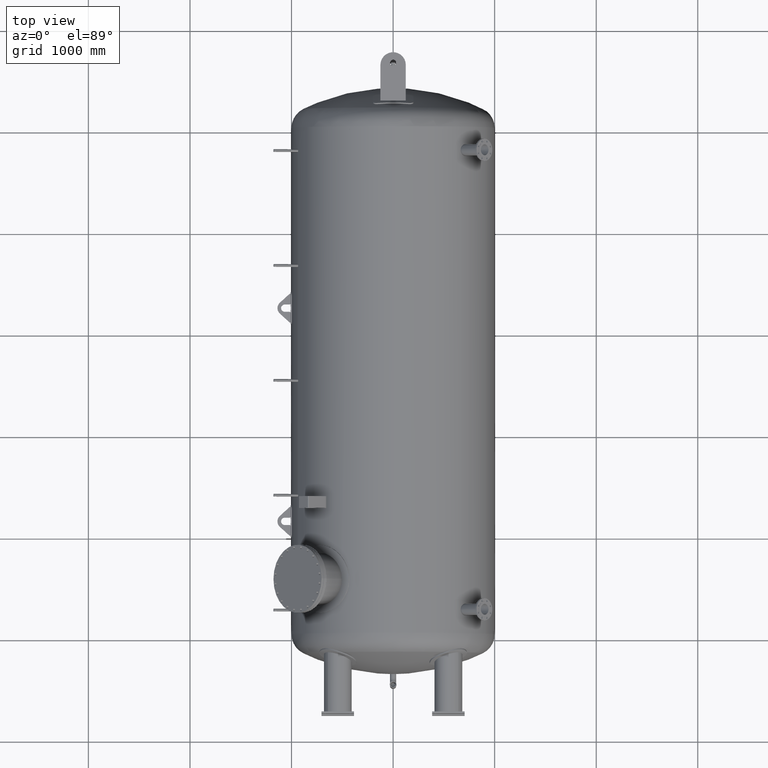
[diagram: clean part render]
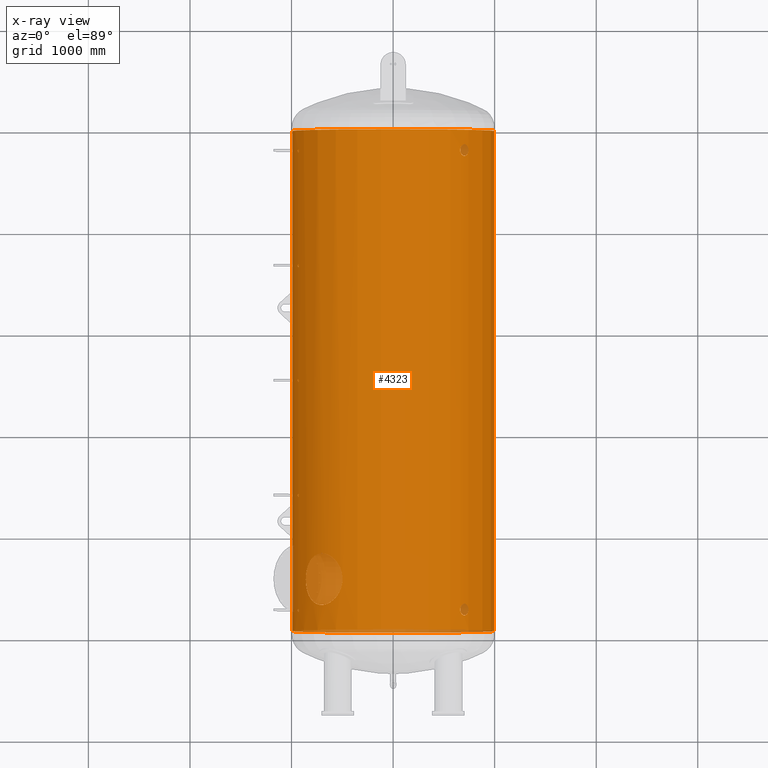
[diagram: x-ray — body ghosted, one internal face saturated and labeled with its STEP entity id]
A machine part, top view, then the same camera in x-ray: the body is ghosted and one INTERNAL B-rep face — a face not visible from any outside direction — is saturated and labeled: STEP entity #4323.
In plain terms, the highlighted cylindrical surface (bore or boss wall) has radius 993 mm, axis along (0, 1, 0).
Its self-contained STEP definition (entity closure, byte-faithful):
#169=B_SPLINE_CURVE_WITH_KNOTS('',3,(#7007,#7008,#7009,#7010,#7011,#7012,
#7013,#7014,#7015,#7016,#7017,#7018,#7019,#7020,#7021,#7022,#7023,#7024,
#7025,#7026,#7027,#7028,#7029,#7030,#7031,#7032),.UNSPECIFIED.,.F.,.F.,
(4,2,2,2,2,2,2,2,2,2,2,2,4),(0.,0.506650251299068,1.01330050259814,1.51995075332208,
2.02660100404602,2.53325125476996,3.03990150549391,3.54655175679297,4.05320200809204,
4.5598522593911,5.06650251069017,5.57315276141411,6.07980301213806),
 .UNSPECIFIED.);
#170=B_SPLINE_CURVE_WITH_KNOTS('',3,(#7033,#7034,#7035,#7036,#7037,#7038,
#7039,#7040,#7041,#7042),.UNSPECIFIED.,.F.,.F.,(4,2,2,2,4),(6.07980301213806,
6.586453262862,7.09310351358594,7.59975376488501,8.10640401618408),
 .UNSPECIFIED.);
#173=B_SPLINE_CURVE_WITH_KNOTS('',3,(#7086,#7087,#7088,#7089,#7090,#7091,
#7092,#7093,#7094,#7095,#7096,#7097,#7098,#7099,#7100,#7101,#7102,#7103,
#7104,#7105,#7106,#7107,#7108,#7109,#7110,#7111),.UNSPECIFIED.,.F.,.F.,
(4,2,2,2,2,2,2,2,2,2,2,2,4),(0.,0.506650251299068,1.01330050259814,1.51995075332207,
2.02660100404601,2.53325125476995,3.03990150549389,3.54655175679296,4.05320200809202,
4.55985225939108,5.06650251069015,5.57315276141409,6.07980301213803),
 .UNSPECIFIED.);
#174=B_SPLINE_CURVE_WITH_KNOTS('',3,(#7112,#7113,#7114,#7115,#7116,#7117,
#7118,#7119,#7120,#7121),.UNSPECIFIED.,.F.,.F.,(4,2,2,2,4),(6.07980301213803,
6.58645326286197,7.0931035135859,7.59975376488497,8.10640401618404),
 .UNSPECIFIED.);
#177=B_SPLINE_CURVE_WITH_KNOTS('',3,(#7165,#7166,#7167,#7168,#7169,#7170,
#7171,#7172,#7173,#7174,#7175,#7176,#7177,#7178,#7179,#7180,#7181,#7182,
#7183,#7184,#7185,#7186,#7187,#7188,#7189,#7190),.UNSPECIFIED.,.F.,.F.,
(4,2,2,2,2,2,2,2,2,2,2,2,4),(0.,0.506650251299068,1.01330050259814,1.51995075332207,
2.02660100404601,2.53325125476995,3.03990150549389,3.54655175679296,4.05320200809202,
4.55985225939108,5.06650251069015,5.57315276141409,6.07980301213803),
 .UNSPECIFIED.);
#178=B_SPLINE_CURVE_WITH_KNOTS('',3,(#7191,#7192,#7193,#7194,#7195,#7196,
#7197,#7198,#7199,#7200),.UNSPECIFIED.,.F.,.F.,(4,2,2,2,4),(6.07980301213803,
6.58645326286197,7.0931035135859,7.59975376488497,8.10640401618404),
 .UNSPECIFIED.);
#181=B_SPLINE_CURVE_WITH_KNOTS('',3,(#7244,#7245,#7246,#7247,#7248,#7249,
#7250,#7251,#7252,#7253,#7254,#7255,#7256,#7257,#7258,#7259,#7260,#7261,
#7262,#7263,#7264,#7265,#7266,#7267,#7268,#7269),.UNSPECIFIED.,.F.,.F.,
(4,2,2,2,2,2,2,2,2,2,2,2,4),(0.,0.506650251299068,1.01330050259814,1.51995075332208,
2.02660100404602,2.53325125476996,3.03990150549391,3.54655175679297,4.05320200809204,
4.5598522593911,5.06650251069017,5.57315276141411,6.07980301213806),
 .UNSPECIFIED.);
#182=B_SPLINE_CURVE_WITH_KNOTS('',3,(#7270,#7271,#7272,#7273,#7274,#7275,
#7276,#7277,#7278,#7279),.UNSPECIFIED.,.F.,.F.,(4,2,2,2,4),(6.07980301213806,
6.586453262862,7.09310351358594,7.59975376488501,8.10640401618408),
 .UNSPECIFIED.);
#185=B_SPLINE_CURVE_WITH_KNOTS('',3,(#7323,#7324,#7325,#7326,#7327,#7328,
#7329,#7330,#7331,#7332,#7333,#7334,#7335,#7336,#7337,#7338,#7339,#7340,
#7341,#7342,#7343,#7344,#7345,#7346,#7347,#7348),.UNSPECIFIED.,.F.,.F.,
(4,2,2,2,2,2,2,2,2,2,2,2,4),(0.,0.506650251299054,1.01330050259811,1.51995075332205,
2.02660100404599,2.53325125476994,3.03990150549389,3.54655175679294,4.05320200809199,
4.55985225939104,5.06650251069009,5.57315276141404,6.07980301213799),
 .UNSPECIFIED.);
#186=B_SPLINE_CURVE_WITH_KNOTS('',3,(#7349,#7350,#7351,#7352,#7353,#7354,
#7355,#7356,#7357,#7358),.UNSPECIFIED.,.F.,.F.,(4,2,2,2,4),(6.07980301213799,
6.58645326286193,7.09310351358587,7.59975376488493,8.10640401618398),
 .UNSPECIFIED.);
#189=B_SPLINE_CURVE_WITH_KNOTS('',3,(#7418,#7419,#7420,#7421,#7422,#7423,
#7424,#7425,#7426,#7427,#7428,#7429,#7430,#7431,#7432,#7433,#7434,#7435,
#7436,#7437,#7438,#7439,#7440,#7441,#7442,#7443,#7444,#7445,#7446,#7447,
#7448,#7449,#7450,#7451,#7452,#7453,#7454,#7455,#7456,#7457,#7458,#7459,
#7460,#7461,#7462,#7463,#7464,#7465,#7466,#7467),.UNSPECIFIED.,.F.,.F.,
(4,2,2,2,2,2,2,2,2,2,2,2,2,2,2,2,2,2,2,2,2,2,2,2,4),(0.,1.07663762456727,
2.15327524913453,3.2299128737018,4.30655049826906,5.38318772328418,6.45982494829929,
7.5364621733144,8.61309939832951,9.68973662334463,10.7663738483597,11.8430110733749,
12.91964829839,13.9962859229572,15.0729235475245,16.1495611720918,17.226198796659,
18.3028364212263,19.3794740457935,20.4561116703607,21.532749294928,22.6093865199431,
23.6860237449582,24.7626609699734,25.8392981949885),.UNSPECIFIED.);
#190=B_SPLINE_CURVE_WITH_KNOTS('',3,(#7468,#7469,#7470,#7471,#7472,#7473,
#7474,#7475,#7476,#7477,#7478,#7479,#7480,#7481,#7482,#7483,#7484,#7485),
 .UNSPECIFIED.,.F.,.F.,(4,2,2,2,2,2,2,2,4),(25.8392981949885,26.9159354200036,
27.9925726450187,29.0692098700339,30.145847095049,31.2224847196162,32.2991223441835,
33.3757599687507,34.4523975933179),.UNSPECIFIED.);
#193=B_SPLINE_CURVE_WITH_KNOTS('',3,(#7561,#7562,#7563,#7564,#7565,#7566,
#7567,#7568,#7569,#7570,#7571,#7572,#7573,#7574,#7575,#7576,#7577,#7578,
#7579,#7580,#7581,#7582,#7583,#7584,#7585,#7586,#7587,#7588,#7589,#7590,
#7591,#7592,#7593,#7594,#7595,#7596,#7597,#7598,#7599,#7600,#7601,#7602,
#7603,#7604,#7605,#7606,#7607,#7608,#7609,#7610),.UNSPECIFIED.,.F.,.F.,
(4,2,2,2,2,2,2,2,2,2,2,2,2,2,2,2,2,2,2,2,2,2,2,2,4),(0.,1.07663762456725,
2.1532752491345,3.22991287370176,4.30655049826901,5.38318772328413,6.45982494829925,
7.53646217331437,8.61309939832949,9.68973662334462,10.7663738483597,11.8430110733749,
12.91964829839,13.9962859229572,15.0729235475245,16.1495611720917,17.226198796659,
18.3028364212262,19.3794740457935,20.4561116703608,21.532749294928,22.6093865199431,
23.6860237449583,24.7626609699734,25.8392981949885),.UNSPECIFIED.);
#194=B_SPLINE_CURVE_WITH_KNOTS('',3,(#7611,#7612,#7613,#7614,#7615,#7616,
#7617,#7618,#7619,#7620,#7621,#7622,#7623,#7624,#7625,#7626,#7627,#7628),
 .UNSPECIFIED.,.F.,.F.,(4,2,2,2,2,2,2,2,4),(25.8392981949885,26.9159354200036,
27.9925726450187,29.0692098700339,30.145847095049,31.2224847196162,32.2991223441835,
33.3757599687508,34.452397593318),.UNSPECIFIED.);
#197=B_SPLINE_CURVE_WITH_KNOTS('',3,(#7704,#7705,#7706,#7707,#7708,#7709,
#7710,#7711,#7712,#7713,#7714,#7715,#7716,#7717,#7718,#7719,#7720,#7721,
#7722,#7723,#7724,#7725,#7726,#7727,#7728,#7729,#7730,#7731,#7732,#7733,
#7734,#7735,#7736,#7737,#7738,#7739,#7740,#7741,#7742,#7743,#7744,#7745,
#7746,#7747,#7748,#7749,#7750,#7751,#7752,#7753),.UNSPECIFIED.,.F.,.F.,
(4,2,2,2,2,2,2,2,2,2,2,2,2,2,2,2,2,2,2,2,2,2,2,2,4),(0.,1.07663762456727,
2.15327524913453,3.2299128737018,4.30655049826906,5.38318772328418,6.45982494829929,
7.5364621733144,8.61309939832951,9.68973662334463,10.7663738483597,11.8430110733749,
12.91964829839,13.9962859229572,15.0729235475245,16.1495611720918,17.226198796659,
18.3028364212263,19.3794740457935,20.4561116703607,21.532749294928,22.6093865199431,
23.6860237449582,24.7626609699734,25.8392981949885),.UNSPECIFIED.);
#198=B_SPLINE_CURVE_WITH_KNOTS('',3,(#7754,#7755,#7756,#7757,#7758,#7759,
#7760,#7761,#7762,#7763,#7764,#7765,#7766,#7767,#7768,#7769,#7770,#7771),
 .UNSPECIFIED.,.F.,.F.,(4,2,2,2,2,2,2,2,4),(25.8392981949885,26.9159354200036,
27.9925726450187,29.0692098700339,30.145847095049,31.2224847196162,32.2991223441835,
33.3757599687507,34.4523975933179),.UNSPECIFIED.);
#201=B_SPLINE_CURVE_WITH_KNOTS('',3,(#7847,#7848,#7849,#7850,#7851,#7852,
#7853,#7854,#7855,#7856,#7857,#7858,#7859,#7860,#7861,#7862,#7863,#7864,
#7865,#7866,#7867,#7868,#7869,#7870,#7871,#7872,#7873,#7874,#7875,#7876,
#7877,#7878,#7879,#7880,#7881,#7882,#7883,#7884,#7885,#7886,#7887,#7888,
#7889,#7890,#7891,#7892,#7893,#7894,#7895,#7896),.UNSPECIFIED.,.F.,.F.,
(4,2,2,2,2,2,2,2,2,2,2,2,2,2,2,2,2,2,2,2,2,2,2,2,4),(0.,1.07663762456725,
2.1532752491345,3.22991287370176,4.30655049826901,5.38318772328413,6.45982494829925,
7.53646217331437,8.61309939832949,9.68973662334462,10.7663738483597,11.8430110733749,
12.91964829839,13.9962859229572,15.0729235475245,16.1495611720917,17.226198796659,
18.3028364212262,19.3794740457935,20.4561116703608,21.532749294928,22.6093865199431,
23.6860237449583,24.7626609699734,25.8392981949885),.UNSPECIFIED.);
#202=B_SPLINE_CURVE_WITH_KNOTS('',3,(#7897,#7898,#7899,#7900,#7901,#7902,
#7903,#7904,#7905,#7906,#7907,#7908,#7909,#7910,#7911,#7912,#7913,#7914),
 .UNSPECIFIED.,.F.,.F.,(4,2,2,2,2,2,2,2,4),(25.8392981949885,26.9159354200036,
27.9925726450187,29.0692098700339,30.145847095049,31.2224847196162,32.2991223441835,
33.3757599687508,34.452397593318),.UNSPECIFIED.);
#205=B_SPLINE_CURVE_WITH_KNOTS('',3,(#8022,#8023,#8024,#8025,#8026,#8027,
#8028,#8029,#8030,#8031,#8032,#8033,#8034,#8035,#8036,#8037,#8038,#8039,
#8040,#8041,#8042,#8043,#8044,#8045,#8046,#8047,#8048,#8049,#8050,#8051,
#8052,#8053,#8054,#8055,#8056,#8057,#8058,#8059,#8060,#8061,#8062,#8063,
#8064,#8065,#8066,#8067,#8068,#8069,#8070,#8071,#8072,#8073,#8074,#8075,
#8076,#8077,#8078,#8079,#8080,#8081,#8082,#8083,#8084,#8085,#8086,#8087,
#8088,#8089,#8090,#8091,#8092,#8093,#8094,#8095,#8096,#8097,#8098,#8099,
#8100,#8101,#8102,#8103,#8104,#8105,#8106,#8107,#8108,#8109,#8110,#8111,
#8112,#8113,#8114,#8115,#8116,#8117,#8118,#8119),.UNSPECIFIED.,.F.,.F.,
(4,2,2,2,2,2,2,2,2,2,2,2,2,2,2,2,2,2,2,2,2,2,2,2,2,2,2,2,2,2,2,2,2,2,2,
2,2,2,2,2,2,2,2,2,2,2,2,2,4),(0.,2.40369643023023,4.80739286046045,7.21108929069068,
9.61478572092091,12.0184821511511,14.4221785813814,16.8258750116116,19.2295714418418,
21.6328985000873,24.0362255583327,26.4395526165782,28.8428796748237,31.2462067330691,
33.6495337913146,36.0528608495601,38.4561879078055,40.859514966051,43.2628420242965,
45.6661690825419,48.0694961407874,50.4728231990328,52.8761502572783,55.2794773155238,
57.6828043737692,60.0865008039995,62.4901972342297,64.8938936644599,67.2975900946902,
69.7012865249204,72.1049829551506,74.5086793853808,76.9123758156111,79.3160722458413,
81.7197686760715,84.1234651063017,86.527161536532,88.9308579667622,91.3345543969924,
93.7382508272226,96.1419472574529,98.5452743156983,100.948601373944,103.351928432189,
105.755255490435,108.15858254868,110.561909606926,112.965236665171,115.368563723417),
 .UNSPECIFIED.);
#206=B_SPLINE_CURVE_WITH_KNOTS('',3,(#8120,#8121,#8122,#8123,#8124,#8125,
#8126,#8127,#8128,#8129,#8130,#8131,#8132,#8133,#8134,#8135,#8136,#8137,
#8138,#8139,#8140,#8141,#8142,#8143,#8144,#8145,#8146,#8147,#8148,#8149,
#8150,#8151,#8152,#8153),.UNSPECIFIED.,.F.,.F.,(4,2,2,2,2,2,2,2,2,2,2,2,
2,2,2,2,4),(115.368563723417,117.771890781662,120.175217839908,122.578544898153,
124.981871956398,127.385199014644,129.788526072889,132.191853131135,134.59518018938,
136.998876619611,139.402573049841,141.806269480071,144.209965910301,146.613662340531,
149.017358770762,151.421055200992,153.824751631222),.UNSPECIFIED.);
#408=FACE_BOUND('',#849,.T.);
#409=FACE_BOUND('',#850,.T.);
#410=FACE_BOUND('',#851,.T.);
#411=FACE_BOUND('',#852,.T.);
#412=FACE_BOUND('',#853,.T.);
#413=FACE_BOUND('',#854,.T.);
#414=FACE_BOUND('',#855,.T.);
#415=FACE_BOUND('',#856,.T.);
#416=FACE_BOUND('',#857,.T.);
#417=FACE_BOUND('',#858,.T.);
#611=FACE_OUTER_BOUND('',#848,.T.);
#848=EDGE_LOOP('',(#3044,#3045,#3046,#3047,#3048,#3049));
#849=EDGE_LOOP('',(#3050,#3051));
#850=EDGE_LOOP('',(#3052,#3053));
#851=EDGE_LOOP('',(#3054,#3055));
#852=EDGE_LOOP('',(#3056,#3057));
#853=EDGE_LOOP('',(#3058,#3059));
#854=EDGE_LOOP('',(#3060,#3061));
#855=EDGE_LOOP('',(#3062,#3063));
#856=EDGE_LOOP('',(#3064,#3065));
#857=EDGE_LOOP('',(#3066,#3067));
#858=EDGE_LOOP('',(#3068,#3069));
#1246=LINE('',#8226,#1474);
#1474=VECTOR('',#5656,992.999999999999);
#1707=CIRCLE('',#5028,992.999999999999);
#1708=CIRCLE('',#5029,992.999999999998);
#1709=CIRCLE('',#5030,992.999999999998);
#1710=CIRCLE('',#5031,992.999999999999);
#1980=VERTEX_POINT('',#7004);
#1981=VERTEX_POINT('',#7006);
#1984=VERTEX_POINT('',#7083);
#1985=VERTEX_POINT('',#7085);
#1988=VERTEX_POINT('',#7162);
#1989=VERTEX_POINT('',#7164);
#1992=VERTEX_POINT('',#7241);
#1993=VERTEX_POINT('',#7243);
#1996=VERTEX_POINT('',#7320);
#1997=VERTEX_POINT('',#7322);
#2000=VERTEX_POINT('',#7415);
#2001=VERTEX_POINT('',#7417);
#2004=VERTEX_POINT('',#7558);
#2005=VERTEX_POINT('',#7560);
#2008=VERTEX_POINT('',#7701);
#2009=VERTEX_POINT('',#7703);
#2012=VERTEX_POINT('',#7844);
#2013=VERTEX_POINT('',#7846);
#2016=VERTEX_POINT('',#8019);
#2017=VERTEX_POINT('',#8021);
#2018=VERTEX_POINT('',#8222);
#2019=VERTEX_POINT('',#8223);
#2020=VERTEX_POINT('',#8225);
#2021=VERTEX_POINT('',#8227);
#2386=EDGE_CURVE('',#1981,#1980,#169,.T.);
#2387=EDGE_CURVE('',#1980,#1981,#170,.T.);
#2391=EDGE_CURVE('',#1985,#1984,#173,.T.);
#2392=EDGE_CURVE('',#1984,#1985,#174,.T.);
#2396=EDGE_CURVE('',#1989,#1988,#177,.T.);
#2397=EDGE_CURVE('',#1988,#1989,#178,.T.);
#2401=EDGE_CURVE('',#1993,#1992,#181,.T.);
#2402=EDGE_CURVE('',#1992,#1993,#182,.T.);
#2406=EDGE_CURVE('',#1997,#1996,#185,.T.);
#2407=EDGE_CURVE('',#1996,#1997,#186,.T.);
#2411=EDGE_CURVE('',#2001,#2000,#189,.T.);
#2412=EDGE_CURVE('',#2000,#2001,#190,.T.);
#2416=EDGE_CURVE('',#2005,#2004,#193,.T.);
#2417=EDGE_CURVE('',#2004,#2005,#194,.T.);
#2421=EDGE_CURVE('',#2009,#2008,#197,.T.);
#2422=EDGE_CURVE('',#2008,#2009,#198,.T.);
#2426=EDGE_CURVE('',#2013,#2012,#201,.T.);
#2427=EDGE_CURVE('',#2012,#2013,#202,.T.);
#2431=EDGE_CURVE('',#2017,#2016,#205,.T.);
#2432=EDGE_CURVE('',#2016,#2017,#206,.T.);
#2434=EDGE_CURVE('',#2018,#2019,#1707,.T.);
#2435=EDGE_CURVE('',#2019,#2020,#1246,.T.);
#2436=EDGE_CURVE('',#2021,#2020,#1708,.T.);
#2437=EDGE_CURVE('',#2020,#2021,#1709,.T.);
#2438=EDGE_CURVE('',#2019,#2018,#1710,.T.);
#3044=ORIENTED_EDGE('',*,*,#2434,.T.);
#3045=ORIENTED_EDGE('',*,*,#2435,.T.);
#3046=ORIENTED_EDGE('',*,*,#2436,.F.);
#3047=ORIENTED_EDGE('',*,*,#2437,.F.);
#3048=ORIENTED_EDGE('',*,*,#2435,.F.);
#3049=ORIENTED_EDGE('',*,*,#2438,.T.);
#3050=ORIENTED_EDGE('',*,*,#2386,.T.);
#3051=ORIENTED_EDGE('',*,*,#2387,.T.);
#3052=ORIENTED_EDGE('',*,*,#2391,.T.);
#3053=ORIENTED_EDGE('',*,*,#2392,.T.);
#3054=ORIENTED_EDGE('',*,*,#2396,.T.);
#3055=ORIENTED_EDGE('',*,*,#2397,.T.);
#3056=ORIENTED_EDGE('',*,*,#2401,.T.);
#3057=ORIENTED_EDGE('',*,*,#2402,.T.);
#3058=ORIENTED_EDGE('',*,*,#2406,.T.);
#3059=ORIENTED_EDGE('',*,*,#2407,.T.);
#3060=ORIENTED_EDGE('',*,*,#2411,.T.);
#3061=ORIENTED_EDGE('',*,*,#2412,.T.);
#3062=ORIENTED_EDGE('',*,*,#2416,.T.);
#3063=ORIENTED_EDGE('',*,*,#2417,.T.);
#3064=ORIENTED_EDGE('',*,*,#2421,.T.);
#3065=ORIENTED_EDGE('',*,*,#2422,.T.);
#3066=ORIENTED_EDGE('',*,*,#2426,.T.);
#3067=ORIENTED_EDGE('',*,*,#2427,.T.);
#3068=ORIENTED_EDGE('',*,*,#2431,.T.);
#3069=ORIENTED_EDGE('',*,*,#2432,.T.);
#4113=CYLINDRICAL_SURFACE('',#5027,992.999999999999);
#4323=ADVANCED_FACE('',(#611,#408,#409,#410,#411,#412,#413,#414,#415,#416,
#417),#4113,.F.);
#5027=AXIS2_PLACEMENT_3D('',#8221,#5652,#5653);
#5028=AXIS2_PLACEMENT_3D('',#8224,#5654,#5655);
#5029=AXIS2_PLACEMENT_3D('',#8228,#5657,#5658);
#5030=AXIS2_PLACEMENT_3D('',#8229,#5659,#5660);
#5031=AXIS2_PLACEMENT_3D('',#8230,#5661,#5662);
#5652=DIRECTION('center_axis',(0.,1.,0.));
#5653=DIRECTION('ref_axis',(-1.,0.,0.));
#5654=DIRECTION('center_axis',(0.,1.,0.));
#5655=DIRECTION('ref_axis',(1.,0.,0.));
#5656=DIRECTION('',(0.,-1.,0.));
#5657=DIRECTION('center_axis',(0.,1.,0.));
#5658=DIRECTION('ref_axis',(1.,0.,0.));
#5659=DIRECTION('center_axis',(0.,1.,0.));
#5660=DIRECTION('ref_axis',(1.,0.,0.));
#5661=DIRECTION('center_axis',(0.,1.,0.));
#5662=DIRECTION('ref_axis',(1.,0.,0.));
#7004=CARTESIAN_POINT('',(-933.114772440406,3607.2,339.626002322389));
#7006=CARTESIAN_POINT('',(-937.629343900941,3593.75,326.95598091469));
#7007=CARTESIAN_POINT('Ctrl Pts',(-937.629343900941,3593.75,326.95598091469));
#7008=CARTESIAN_POINT('Ctrl Pts',(-937.629343900941,3592.061165829,326.95598091469));
#7009=CARTESIAN_POINT('Ctrl Pts',(-937.518371231108,3590.25977706952,327.274769429209));
#7010=CARTESIAN_POINT('Ctrl Pts',(-937.065046891158,3586.9459812774,328.570493190739));
#7011=CARTESIAN_POINT('Ctrl Pts',(-936.722464123556,3585.43357250011,329.547343111927));
#7012=CARTESIAN_POINT('Ctrl Pts',(-935.927107368954,3583.04525508732,331.799451231939));
#7013=CARTESIAN_POINT('Ctrl Pts',(-935.421277960202,3582.01014621728,333.224816188267));
#7014=CARTESIAN_POINT('Ctrl Pts',(-934.304034124935,3580.63751810176,336.344640513671));
#7015=CARTESIAN_POINT('Ctrl Pts',(-933.692387744968,3580.3,338.039017315973));
#7016=CARTESIAN_POINT('Ctrl Pts',(-932.537157135844,3580.3,341.212987328804));
#7017=CARTESIAN_POINT('Ctrl Pts',(-931.916581031712,3580.63751810176,342.90411397731));
#7018=CARTESIAN_POINT('Ctrl Pts',(-930.767055042557,3582.01014621728,346.012188559601));
#7019=CARTESIAN_POINT('Ctrl Pts',(-930.23833591709,3583.04525508732,347.429222340374));
#7020=CARTESIAN_POINT('Ctrl Pts',(-929.399987344032,3585.43357250011,349.665682718151));
#7021=CARTESIAN_POINT('Ctrl Pts',(-929.034513943599,3586.9459812774,350.634201130345));
#7022=CARTESIAN_POINT('Ctrl Pts',(-928.54890535566,3590.25977706952,351.918174386571));
#7023=CARTESIAN_POINT('Ctrl Pts',(-928.429002045481,3592.061165829,352.233712413831));
#7024=CARTESIAN_POINT('Ctrl Pts',(-928.429002045481,3595.438834171,352.233712413831));
#7025=CARTESIAN_POINT('Ctrl Pts',(-928.54890535566,3597.24022293048,351.918174386571));
#7026=CARTESIAN_POINT('Ctrl Pts',(-929.034513943599,3600.5540187226,350.634201130345));
#7027=CARTESIAN_POINT('Ctrl Pts',(-929.399987344032,3602.06642749989,349.665682718151));
#7028=CARTESIAN_POINT('Ctrl Pts',(-930.23833591709,3604.45474491268,347.429222340374));
#7029=CARTESIAN_POINT('Ctrl Pts',(-930.767055042557,3605.48985378272,346.012188559601));
#7030=CARTESIAN_POINT('Ctrl Pts',(-931.916581031712,3606.86248189824,342.90411397731));
#7031=CARTESIAN_POINT('Ctrl Pts',(-932.537157135844,3607.2,341.212987328804));
#7032=CARTESIAN_POINT('Ctrl Pts',(-933.114772440406,3607.2,339.626002322389));
#7033=CARTESIAN_POINT('Ctrl Pts',(-933.114772440406,3607.2,339.626002322389));
#7034=CARTESIAN_POINT('Ctrl Pts',(-933.692387744968,3607.2,338.039017315973));
#7035=CARTESIAN_POINT('Ctrl Pts',(-934.304034124935,3606.86248189824,336.344640513671));
#7036=CARTESIAN_POINT('Ctrl Pts',(-935.421277960202,3605.48985378272,333.224816188267));
#7037=CARTESIAN_POINT('Ctrl Pts',(-935.927107368954,3604.45474491268,331.799451231939));
#7038=CARTESIAN_POINT('Ctrl Pts',(-936.722464123556,3602.06642749989,329.547343111927));
#7039=CARTESIAN_POINT('Ctrl Pts',(-937.065046891158,3600.5540187226,328.570493190739));
#7040=CARTESIAN_POINT('Ctrl Pts',(-937.518371231108,3597.24022293048,327.274769429209));
#7041=CARTESIAN_POINT('Ctrl Pts',(-937.629343900941,3595.438834171,326.95598091469));
#7042=CARTESIAN_POINT('Ctrl Pts',(-937.629343900941,3593.75,326.95598091469));
#7083=CARTESIAN_POINT('',(-933.114772440406,2475.95,339.626002322389));
#7085=CARTESIAN_POINT('',(-937.629343900941,2462.5,326.95598091469));
#7086=CARTESIAN_POINT('Ctrl Pts',(-937.629343900941,2462.5,326.95598091469));
#7087=CARTESIAN_POINT('Ctrl Pts',(-937.629343900941,2460.811165829,326.95598091469));
#7088=CARTESIAN_POINT('Ctrl Pts',(-937.518371231108,2459.00977706952,327.274769429209));
#7089=CARTESIAN_POINT('Ctrl Pts',(-937.065046891158,2455.6959812774,328.57049319074));
#7090=CARTESIAN_POINT('Ctrl Pts',(-936.722464123556,2454.18357250011,329.547343111927));
#7091=CARTESIAN_POINT('Ctrl Pts',(-935.927107368954,2451.79525508732,331.799451231939));
#7092=CARTESIAN_POINT('Ctrl Pts',(-935.421277960201,2450.76014621728,333.224816188267));
#7093=CARTESIAN_POINT('Ctrl Pts',(-934.304034124935,2449.38751810176,336.344640513671));
#7094=CARTESIAN_POINT('Ctrl Pts',(-933.692387744968,2449.05,338.039017315973));
#7095=CARTESIAN_POINT('Ctrl Pts',(-932.537157135844,2449.05,341.212987328804));
#7096=CARTESIAN_POINT('Ctrl Pts',(-931.916581031712,2449.38751810176,342.90411397731));
#7097=CARTESIAN_POINT('Ctrl Pts',(-930.767055042557,2450.76014621728,346.012188559601));
#7098=CARTESIAN_POINT('Ctrl Pts',(-930.23833591709,2451.79525508732,347.429222340374));
#7099=CARTESIAN_POINT('Ctrl Pts',(-929.399987344032,2454.18357250011,349.665682718151));
#7100=CARTESIAN_POINT('Ctrl Pts',(-929.034513943599,2455.6959812774,350.634201130344));
#7101=CARTESIAN_POINT('Ctrl Pts',(-928.54890535566,2459.00977706952,351.918174386571));
#7102=CARTESIAN_POINT('Ctrl Pts',(-928.429002045481,2460.811165829,352.233712413831));
#7103=CARTESIAN_POINT('Ctrl Pts',(-928.429002045481,2464.188834171,352.233712413831));
#7104=CARTESIAN_POINT('Ctrl Pts',(-928.54890535566,2465.99022293048,351.918174386571));
#7105=CARTESIAN_POINT('Ctrl Pts',(-929.034513943599,2469.3040187226,350.634201130344));
#7106=CARTESIAN_POINT('Ctrl Pts',(-929.399987344032,2470.81642749989,349.665682718151));
#7107=CARTESIAN_POINT('Ctrl Pts',(-930.23833591709,2473.20474491268,347.429222340374));
#7108=CARTESIAN_POINT('Ctrl Pts',(-930.767055042557,2474.23985378272,346.012188559601));
#7109=CARTESIAN_POINT('Ctrl Pts',(-931.916581031712,2475.61248189824,342.90411397731));
#7110=CARTESIAN_POINT('Ctrl Pts',(-932.537157135844,2475.95,341.212987328804));
#7111=CARTESIAN_POINT('Ctrl Pts',(-933.114772440406,2475.95,339.626002322389));
#7112=CARTESIAN_POINT('Ctrl Pts',(-933.114772440406,2475.95,339.626002322389));
#7113=CARTESIAN_POINT('Ctrl Pts',(-933.692387744968,2475.95,338.039017315973));
#7114=CARTESIAN_POINT('Ctrl Pts',(-934.304034124935,2475.61248189824,336.344640513671));
#7115=CARTESIAN_POINT('Ctrl Pts',(-935.421277960201,2474.23985378272,333.224816188267));
#7116=CARTESIAN_POINT('Ctrl Pts',(-935.927107368954,2473.20474491268,331.799451231939));
#7117=CARTESIAN_POINT('Ctrl Pts',(-936.722464123556,2470.81642749989,329.547343111927));
#7118=CARTESIAN_POINT('Ctrl Pts',(-937.065046891158,2469.3040187226,328.57049319074));
#7119=CARTESIAN_POINT('Ctrl Pts',(-937.518371231108,2465.99022293048,327.274769429209));
#7120=CARTESIAN_POINT('Ctrl Pts',(-937.629343900941,2464.188834171,326.95598091469));
#7121=CARTESIAN_POINT('Ctrl Pts',(-937.629343900941,2462.5,326.95598091469));
#7162=CARTESIAN_POINT('',(-933.114772440406,1344.7,339.626002322389));
#7164=CARTESIAN_POINT('',(-937.629343900941,1331.25,326.95598091469));
#7165=CARTESIAN_POINT('Ctrl Pts',(-937.629343900941,1331.25,326.95598091469));
#7166=CARTESIAN_POINT('Ctrl Pts',(-937.629343900941,1329.561165829,326.95598091469));
#7167=CARTESIAN_POINT('Ctrl Pts',(-937.518371231108,1327.75977706952,327.274769429209));
#7168=CARTESIAN_POINT('Ctrl Pts',(-937.065046891158,1324.4459812774,328.57049319074));
#7169=CARTESIAN_POINT('Ctrl Pts',(-936.722464123556,1322.93357250011,329.547343111927));
#7170=CARTESIAN_POINT('Ctrl Pts',(-935.927107368954,1320.54525508732,331.799451231939));
#7171=CARTESIAN_POINT('Ctrl Pts',(-935.421277960201,1319.51014621728,333.224816188267));
#7172=CARTESIAN_POINT('Ctrl Pts',(-934.304034124935,1318.13751810176,336.344640513671));
#7173=CARTESIAN_POINT('Ctrl Pts',(-933.692387744968,1317.8,338.039017315973));
#7174=CARTESIAN_POINT('Ctrl Pts',(-932.537157135844,1317.8,341.212987328804));
#7175=CARTESIAN_POINT('Ctrl Pts',(-931.916581031712,1318.13751810176,342.90411397731));
#7176=CARTESIAN_POINT('Ctrl Pts',(-930.767055042557,1319.51014621728,346.012188559601));
#7177=CARTESIAN_POINT('Ctrl Pts',(-930.23833591709,1320.54525508732,347.429222340374));
#7178=CARTESIAN_POINT('Ctrl Pts',(-929.399987344032,1322.93357250011,349.665682718151));
#7179=CARTESIAN_POINT('Ctrl Pts',(-929.034513943599,1324.4459812774,350.634201130344));
#7180=CARTESIAN_POINT('Ctrl Pts',(-928.54890535566,1327.75977706952,351.918174386571));
#7181=CARTESIAN_POINT('Ctrl Pts',(-928.429002045481,1329.561165829,352.233712413831));
#7182=CARTESIAN_POINT('Ctrl Pts',(-928.429002045481,1332.938834171,352.233712413831));
#7183=CARTESIAN_POINT('Ctrl Pts',(-928.54890535566,1334.74022293048,351.918174386571));
#7184=CARTESIAN_POINT('Ctrl Pts',(-929.034513943599,1338.0540187226,350.634201130344));
#7185=CARTESIAN_POINT('Ctrl Pts',(-929.399987344032,1339.56642749989,349.665682718151));
#7186=CARTESIAN_POINT('Ctrl Pts',(-930.23833591709,1341.95474491268,347.429222340374));
#7187=CARTESIAN_POINT('Ctrl Pts',(-930.767055042557,1342.98985378272,346.012188559601));
#7188=CARTESIAN_POINT('Ctrl Pts',(-931.916581031712,1344.36248189824,342.90411397731));
#7189=CARTESIAN_POINT('Ctrl Pts',(-932.537157135844,1344.7,341.212987328804));
#7190=CARTESIAN_POINT('Ctrl Pts',(-933.114772440406,1344.7,339.626002322389));
#7191=CARTESIAN_POINT('Ctrl Pts',(-933.114772440406,1344.7,339.626002322389));
#7192=CARTESIAN_POINT('Ctrl Pts',(-933.692387744968,1344.7,338.039017315973));
#7193=CARTESIAN_POINT('Ctrl Pts',(-934.304034124935,1344.36248189824,336.344640513671));
#7194=CARTESIAN_POINT('Ctrl Pts',(-935.421277960201,1342.98985378272,333.224816188267));
#7195=CARTESIAN_POINT('Ctrl Pts',(-935.927107368954,1341.95474491268,331.799451231939));
#7196=CARTESIAN_POINT('Ctrl Pts',(-936.722464123556,1339.56642749989,329.547343111927));
#7197=CARTESIAN_POINT('Ctrl Pts',(-937.065046891158,1338.0540187226,328.57049319074));
#7198=CARTESIAN_POINT('Ctrl Pts',(-937.518371231108,1334.74022293048,327.274769429209));
#7199=CARTESIAN_POINT('Ctrl Pts',(-937.629343900941,1332.938834171,326.95598091469));
#7200=CARTESIAN_POINT('Ctrl Pts',(-937.629343900941,1331.25,326.95598091469));
#7241=CARTESIAN_POINT('',(-933.114772440406,4738.45,339.626002322389));
#7243=CARTESIAN_POINT('',(-937.629343900941,4725.,326.95598091469));
#7244=CARTESIAN_POINT('Ctrl Pts',(-937.629343900941,4725.,326.95598091469));
#7245=CARTESIAN_POINT('Ctrl Pts',(-937.629343900941,4723.311165829,326.95598091469));
#7246=CARTESIAN_POINT('Ctrl Pts',(-937.518371231108,4721.50977706952,327.274769429209));
#7247=CARTESIAN_POINT('Ctrl Pts',(-937.065046891158,4718.1959812774,328.570493190739));
#7248=CARTESIAN_POINT('Ctrl Pts',(-936.722464123556,4716.68357250011,329.547343111927));
#7249=CARTESIAN_POINT('Ctrl Pts',(-935.927107368954,4714.29525508732,331.799451231939));
#7250=CARTESIAN_POINT('Ctrl Pts',(-935.421277960202,4713.26014621728,333.224816188267));
#7251=CARTESIAN_POINT('Ctrl Pts',(-934.304034124935,4711.88751810176,336.344640513671));
#7252=CARTESIAN_POINT('Ctrl Pts',(-933.692387744968,4711.55,338.039017315973));
#7253=CARTESIAN_POINT('Ctrl Pts',(-932.537157135844,4711.55,341.212987328804));
#7254=CARTESIAN_POINT('Ctrl Pts',(-931.916581031712,4711.88751810176,342.90411397731));
#7255=CARTESIAN_POINT('Ctrl Pts',(-930.767055042557,4713.26014621728,346.012188559601));
#7256=CARTESIAN_POINT('Ctrl Pts',(-930.23833591709,4714.29525508732,347.429222340374));
#7257=CARTESIAN_POINT('Ctrl Pts',(-929.399987344032,4716.68357250011,349.665682718151));
#7258=CARTESIAN_POINT('Ctrl Pts',(-929.034513943599,4718.1959812774,350.634201130345));
#7259=CARTESIAN_POINT('Ctrl Pts',(-928.54890535566,4721.50977706952,351.918174386571));
#7260=CARTESIAN_POINT('Ctrl Pts',(-928.429002045481,4723.311165829,352.233712413831));
#7261=CARTESIAN_POINT('Ctrl Pts',(-928.429002045481,4726.688834171,352.233712413831));
#7262=CARTESIAN_POINT('Ctrl Pts',(-928.54890535566,4728.49022293048,351.918174386571));
#7263=CARTESIAN_POINT('Ctrl Pts',(-929.034513943599,4731.8040187226,350.634201130345));
#7264=CARTESIAN_POINT('Ctrl Pts',(-929.399987344032,4733.31642749989,349.665682718151));
#7265=CARTESIAN_POINT('Ctrl Pts',(-930.23833591709,4735.70474491268,347.429222340374));
#7266=CARTESIAN_POINT('Ctrl Pts',(-930.767055042557,4736.73985378272,346.012188559601));
#7267=CARTESIAN_POINT('Ctrl Pts',(-931.916581031712,4738.11248189824,342.90411397731));
#7268=CARTESIAN_POINT('Ctrl Pts',(-932.537157135844,4738.45,341.212987328804));
#7269=CARTESIAN_POINT('Ctrl Pts',(-933.114772440406,4738.45,339.626002322389));
#7270=CARTESIAN_POINT('Ctrl Pts',(-933.114772440406,4738.45,339.626002322389));
#7271=CARTESIAN_POINT('Ctrl Pts',(-933.692387744968,4738.45,338.039017315973));
#7272=CARTESIAN_POINT('Ctrl Pts',(-934.304034124935,4738.11248189824,336.344640513671));
#7273=CARTESIAN_POINT('Ctrl Pts',(-935.421277960202,4736.73985378272,333.224816188267));
#7274=CARTESIAN_POINT('Ctrl Pts',(-935.927107368954,4735.70474491268,331.799451231939));
#7275=CARTESIAN_POINT('Ctrl Pts',(-936.722464123556,4733.31642749989,329.547343111927));
#7276=CARTESIAN_POINT('Ctrl Pts',(-937.065046891158,4731.8040187226,328.570493190739));
#7277=CARTESIAN_POINT('Ctrl Pts',(-937.518371231108,4728.49022293048,327.274769429209));
#7278=CARTESIAN_POINT('Ctrl Pts',(-937.629343900941,4726.688834171,326.95598091469));
#7279=CARTESIAN_POINT('Ctrl Pts',(-937.629343900941,4725.,326.95598091469));
#7320=CARTESIAN_POINT('',(-933.114772440406,213.45,339.626002322389));
#7322=CARTESIAN_POINT('',(-937.629343900942,200.,326.95598091469));
#7323=CARTESIAN_POINT('Ctrl Pts',(-937.629343900942,200.,326.95598091469));
#7324=CARTESIAN_POINT('Ctrl Pts',(-937.629343900942,198.311165829003,326.95598091469));
#7325=CARTESIAN_POINT('Ctrl Pts',(-937.518371231108,196.509777069522,327.274769429209));
#7326=CARTESIAN_POINT('Ctrl Pts',(-937.065046891158,193.195981277402,328.570493190739));
#7327=CARTESIAN_POINT('Ctrl Pts',(-936.722464123556,191.683572500115,329.547343111927));
#7328=CARTESIAN_POINT('Ctrl Pts',(-935.927107368954,189.295255087323,331.799451231939));
#7329=CARTESIAN_POINT('Ctrl Pts',(-935.421277960201,188.26014621728,333.224816188266));
#7330=CARTESIAN_POINT('Ctrl Pts',(-934.304034124935,186.887518101763,336.344640513671));
#7331=CARTESIAN_POINT('Ctrl Pts',(-933.692387744968,186.55,338.039017315973));
#7332=CARTESIAN_POINT('Ctrl Pts',(-932.537157135844,186.55,341.212987328804));
#7333=CARTESIAN_POINT('Ctrl Pts',(-931.916581031712,186.887518101763,342.90411397731));
#7334=CARTESIAN_POINT('Ctrl Pts',(-930.767055042558,188.26014621728,346.012188559601));
#7335=CARTESIAN_POINT('Ctrl Pts',(-930.23833591709,189.295255087323,347.429222340374));
#7336=CARTESIAN_POINT('Ctrl Pts',(-929.399987344032,191.683572500115,349.665682718151));
#7337=CARTESIAN_POINT('Ctrl Pts',(-929.034513943599,193.195981277402,350.634201130344));
#7338=CARTESIAN_POINT('Ctrl Pts',(-928.54890535566,196.509777069522,351.918174386571));
#7339=CARTESIAN_POINT('Ctrl Pts',(-928.429002045481,198.311165829003,352.233712413831));
#7340=CARTESIAN_POINT('Ctrl Pts',(-928.429002045481,201.688834170997,352.233712413831));
#7341=CARTESIAN_POINT('Ctrl Pts',(-928.54890535566,203.490222930478,351.918174386571));
#7342=CARTESIAN_POINT('Ctrl Pts',(-929.034513943599,206.804018722598,350.634201130344));
#7343=CARTESIAN_POINT('Ctrl Pts',(-929.399987344032,208.316427499885,349.665682718151));
#7344=CARTESIAN_POINT('Ctrl Pts',(-930.23833591709,210.704744912677,347.429222340374));
#7345=CARTESIAN_POINT('Ctrl Pts',(-930.767055042558,211.73985378272,346.012188559601));
#7346=CARTESIAN_POINT('Ctrl Pts',(-931.916581031712,213.112481898237,342.90411397731));
#7347=CARTESIAN_POINT('Ctrl Pts',(-932.537157135844,213.45,341.212987328804));
#7348=CARTESIAN_POINT('Ctrl Pts',(-933.114772440406,213.45,339.626002322389));
#7349=CARTESIAN_POINT('Ctrl Pts',(-933.114772440406,213.45,339.626002322389));
#7350=CARTESIAN_POINT('Ctrl Pts',(-933.692387744968,213.45,338.039017315973));
#7351=CARTESIAN_POINT('Ctrl Pts',(-934.304034124935,213.112481898237,336.344640513671));
#7352=CARTESIAN_POINT('Ctrl Pts',(-935.421277960201,211.73985378272,333.224816188266));
#7353=CARTESIAN_POINT('Ctrl Pts',(-935.927107368954,210.704744912677,331.799451231939));
#7354=CARTESIAN_POINT('Ctrl Pts',(-936.722464123556,208.316427499885,329.547343111927));
#7355=CARTESIAN_POINT('Ctrl Pts',(-937.065046891158,206.804018722598,328.570493190739));
#7356=CARTESIAN_POINT('Ctrl Pts',(-937.518371231108,203.490222930478,327.274769429209));
#7357=CARTESIAN_POINT('Ctrl Pts',(-937.629343900941,201.688834170997,326.95598091469));
#7358=CARTESIAN_POINT('Ctrl Pts',(-937.629343900941,200.,326.95598091469));
#7415=CARTESIAN_POINT('',(702.15703371824,4782.15,702.157033718241));
#7417=CARTESIAN_POINT('',(660.582027700189,4725.,741.404332789811));
#7418=CARTESIAN_POINT('Ctrl Pts',(660.582027700189,4725.,741.404332789811));
#7419=CARTESIAN_POINT('Ctrl Pts',(660.582027700189,4721.41120791811,741.404332789811));
#7420=CARTESIAN_POINT('Ctrl Pts',(660.839056972103,4717.70008570435,741.175597042454));
#7421=CARTESIAN_POINT('Ctrl Pts',(661.919856925796,4710.31824658163,740.21052942952));
#7422=CARTESIAN_POINT('Ctrl Pts',(662.743369060561,4706.6474679253,739.474380346553));
#7423=CARTESIAN_POINT('Ctrl Pts',(664.91540248411,4699.60741318473,737.521958965257));
#7424=CARTESIAN_POINT('Ctrl Pts',(666.265552290663,4696.23251545923,736.304031017285));
#7425=CARTESIAN_POINT('Ctrl Pts',(669.374650993935,4689.99145102242,733.478690125493));
#7426=CARTESIAN_POINT('Ctrl Pts',(671.13364096714,4687.12545488731,731.870945600062));
#7427=CARTESIAN_POINT('Ctrl Pts',(674.86705498676,4682.05224096443,728.429751685126));
#7428=CARTESIAN_POINT('Ctrl Pts',(676.96921836425,4679.67160027191,726.478785073409));
#7429=CARTESIAN_POINT('Ctrl Pts',(681.524107685049,4675.47531736328,722.207476019553));
#7430=CARTESIAN_POINT('Ctrl Pts',(683.976568395945,4673.65941171301,719.887109550822));
#7431=CARTESIAN_POINT('Ctrl Pts',(689.064317133078,4670.74298115918,715.018715465463));
#7432=CARTESIAN_POINT('Ctrl Pts',(691.70356776033,4669.64013412305,712.466700207489));
#7433=CARTESIAN_POINT('Ctrl Pts',(696.981093713526,4668.19348750001,707.304728927226));
#7434=CARTESIAN_POINT('Ctrl Pts',(699.61937544262,4667.85,704.694691993861));
#7435=CARTESIAN_POINT('Ctrl Pts',(704.694691993861,4667.85,699.619375442621));
#7436=CARTESIAN_POINT('Ctrl Pts',(707.304728927226,4668.19348750001,696.981093713526));
#7437=CARTESIAN_POINT('Ctrl Pts',(712.466700207489,4669.64013412305,691.70356776033));
#7438=CARTESIAN_POINT('Ctrl Pts',(715.018715465463,4670.74298115918,689.064317133078));
#7439=CARTESIAN_POINT('Ctrl Pts',(719.887109550822,4673.65941171301,683.976568395945));
#7440=CARTESIAN_POINT('Ctrl Pts',(722.207476019553,4675.47531736328,681.524107685049));
#7441=CARTESIAN_POINT('Ctrl Pts',(726.478785073409,4679.67160027191,676.969218364249));
#7442=CARTESIAN_POINT('Ctrl Pts',(728.429751685126,4682.05224096443,674.86705498676));
#7443=CARTESIAN_POINT('Ctrl Pts',(731.870945600062,4687.12545488731,671.13364096714));
#7444=CARTESIAN_POINT('Ctrl Pts',(733.478690125494,4689.99145102242,669.374650993934));
#7445=CARTESIAN_POINT('Ctrl Pts',(736.304031017285,4696.23251545923,666.265552290662));
#7446=CARTESIAN_POINT('Ctrl Pts',(737.521958965257,4699.60741318473,664.91540248411));
#7447=CARTESIAN_POINT('Ctrl Pts',(739.474380346552,4706.6474679253,662.743369060561));
#7448=CARTESIAN_POINT('Ctrl Pts',(740.21052942952,4710.31824658163,661.919856925796));
#7449=CARTESIAN_POINT('Ctrl Pts',(741.175597042454,4717.70008570435,660.839056972102));
#7450=CARTESIAN_POINT('Ctrl Pts',(741.404332789811,4721.41120791811,660.582027700189));
#7451=CARTESIAN_POINT('Ctrl Pts',(741.404332789811,4728.58879208189,660.582027700189));
#7452=CARTESIAN_POINT('Ctrl Pts',(741.175597042454,4732.29991429565,660.839056972103));
#7453=CARTESIAN_POINT('Ctrl Pts',(740.21052942952,4739.68175341837,661.919856925797));
#7454=CARTESIAN_POINT('Ctrl Pts',(739.474380346552,4743.3525320747,662.743369060561));
#7455=CARTESIAN_POINT('Ctrl Pts',(737.521958965257,4750.39258681527,664.91540248411));
#7456=CARTESIAN_POINT('Ctrl Pts',(736.304031017285,4753.76748454077,666.265552290662));
#7457=CARTESIAN_POINT('Ctrl Pts',(733.478690125494,4760.00854897758,669.374650993934));
#7458=CARTESIAN_POINT('Ctrl Pts',(731.870945600062,4762.87454511269,671.13364096714));
#7459=CARTESIAN_POINT('Ctrl Pts',(728.429751685126,4767.94775903557,674.86705498676));
#7460=CARTESIAN_POINT('Ctrl Pts',(726.478785073409,4770.32839972809,676.969218364249));
#7461=CARTESIAN_POINT('Ctrl Pts',(722.207476019553,4774.52468263672,681.524107685049));
#7462=CARTESIAN_POINT('Ctrl Pts',(719.887109550822,4776.34058828699,683.976568395944));
#7463=CARTESIAN_POINT('Ctrl Pts',(715.018715465463,4779.25701884082,689.064317133078));
#7464=CARTESIAN_POINT('Ctrl Pts',(712.46670020749,4780.35986587695,691.70356776033));
#7465=CARTESIAN_POINT('Ctrl Pts',(707.304728927226,4781.80651249999,696.981093713526));
#7466=CARTESIAN_POINT('Ctrl Pts',(704.694691993861,4782.15,699.61937544262));
#7467=CARTESIAN_POINT('Ctrl Pts',(702.157033718241,4782.15,702.157033718241));
#7468=CARTESIAN_POINT('Ctrl Pts',(702.157033718241,4782.15,702.157033718241));
#7469=CARTESIAN_POINT('Ctrl Pts',(699.61937544262,4782.15,704.694691993861));
#7470=CARTESIAN_POINT('Ctrl Pts',(696.981093713526,4781.80651249999,707.304728927226));
#7471=CARTESIAN_POINT('Ctrl Pts',(691.70356776033,4780.35986587695,712.466700207489));
#7472=CARTESIAN_POINT('Ctrl Pts',(689.064317133078,4779.25701884082,715.018715465464));
#7473=CARTESIAN_POINT('Ctrl Pts',(683.976568395945,4776.34058828699,719.887109550823));
#7474=CARTESIAN_POINT('Ctrl Pts',(681.524107685049,4774.52468263672,722.207476019553));
#7475=CARTESIAN_POINT('Ctrl Pts',(676.969218364249,4770.32839972809,726.478785073409));
#7476=CARTESIAN_POINT('Ctrl Pts',(674.86705498676,4767.94775903557,728.429751685126));
#7477=CARTESIAN_POINT('Ctrl Pts',(671.13364096714,4762.87454511269,731.870945600062));
#7478=CARTESIAN_POINT('Ctrl Pts',(669.374650993934,4760.00854897758,733.478690125494));
#7479=CARTESIAN_POINT('Ctrl Pts',(666.265552290662,4753.76748454077,736.304031017285));
#7480=CARTESIAN_POINT('Ctrl Pts',(664.91540248411,4750.39258681527,737.521958965257));
#7481=CARTESIAN_POINT('Ctrl Pts',(662.743369060561,4743.3525320747,739.474380346552));
#7482=CARTESIAN_POINT('Ctrl Pts',(661.919856925797,4739.68175341837,740.21052942952));
#7483=CARTESIAN_POINT('Ctrl Pts',(660.839056972103,4732.29991429565,741.175597042454));
#7484=CARTESIAN_POINT('Ctrl Pts',(660.582027700189,4728.58879208189,741.404332789811));
#7485=CARTESIAN_POINT('Ctrl Pts',(660.582027700189,4725.,741.404332789811));
#7558=CARTESIAN_POINT('',(702.157033718241,257.15,702.157033718241));
#7560=CARTESIAN_POINT('',(660.582027700188,200.,741.404332789811));
#7561=CARTESIAN_POINT('Ctrl Pts',(660.582027700188,200.,741.404332789811));
#7562=CARTESIAN_POINT('Ctrl Pts',(660.582027700188,196.411207918109,741.404332789811));
#7563=CARTESIAN_POINT('Ctrl Pts',(660.839056972103,192.700085704349,741.175597042454));
#7564=CARTESIAN_POINT('Ctrl Pts',(661.919856925796,185.31824658163,740.21052942952));
#7565=CARTESIAN_POINT('Ctrl Pts',(662.743369060561,181.647467925301,739.474380346552));
#7566=CARTESIAN_POINT('Ctrl Pts',(664.91540248411,174.60741318473,737.521958965257));
#7567=CARTESIAN_POINT('Ctrl Pts',(666.265552290662,171.232515459233,736.304031017285));
#7568=CARTESIAN_POINT('Ctrl Pts',(669.374650993934,164.991451022417,733.478690125494));
#7569=CARTESIAN_POINT('Ctrl Pts',(671.13364096714,162.12545488731,731.870945600062));
#7570=CARTESIAN_POINT('Ctrl Pts',(674.86705498676,157.052240964431,728.429751685126));
#7571=CARTESIAN_POINT('Ctrl Pts',(676.969218364249,154.671600271914,726.478785073409));
#7572=CARTESIAN_POINT('Ctrl Pts',(681.524107685049,150.475317363279,722.207476019553));
#7573=CARTESIAN_POINT('Ctrl Pts',(683.976568395945,148.659411713012,719.887109550822));
#7574=CARTESIAN_POINT('Ctrl Pts',(689.064317133078,145.742981159181,715.018715465463));
#7575=CARTESIAN_POINT('Ctrl Pts',(691.70356776033,144.640134123045,712.46670020749));
#7576=CARTESIAN_POINT('Ctrl Pts',(696.981093713526,143.19348750001,707.304728927226));
#7577=CARTESIAN_POINT('Ctrl Pts',(699.61937544262,142.85,704.694691993861));
#7578=CARTESIAN_POINT('Ctrl Pts',(704.694691993861,142.85,699.619375442621));
#7579=CARTESIAN_POINT('Ctrl Pts',(707.304728927226,143.19348750001,696.981093713526));
#7580=CARTESIAN_POINT('Ctrl Pts',(712.466700207489,144.640134123045,691.703567760331));
#7581=CARTESIAN_POINT('Ctrl Pts',(715.018715465463,145.742981159181,689.064317133078));
#7582=CARTESIAN_POINT('Ctrl Pts',(719.887109550822,148.659411713012,683.976568395945));
#7583=CARTESIAN_POINT('Ctrl Pts',(722.207476019553,150.47531736328,681.524107685049));
#7584=CARTESIAN_POINT('Ctrl Pts',(726.478785073409,154.671600271915,676.969218364249));
#7585=CARTESIAN_POINT('Ctrl Pts',(728.429751685126,157.052240964431,674.86705498676));
#7586=CARTESIAN_POINT('Ctrl Pts',(731.870945600062,162.12545488731,671.13364096714));
#7587=CARTESIAN_POINT('Ctrl Pts',(733.478690125494,164.991451022418,669.374650993934));
#7588=CARTESIAN_POINT('Ctrl Pts',(736.304031017285,171.232515459233,666.265552290662));
#7589=CARTESIAN_POINT('Ctrl Pts',(737.521958965257,174.60741318473,664.91540248411));
#7590=CARTESIAN_POINT('Ctrl Pts',(739.474380346552,181.647467925301,662.743369060561));
#7591=CARTESIAN_POINT('Ctrl Pts',(740.21052942952,185.31824658163,661.919856925796));
#7592=CARTESIAN_POINT('Ctrl Pts',(741.175597042454,192.700085704349,660.839056972103));
#7593=CARTESIAN_POINT('Ctrl Pts',(741.404332789811,196.411207918109,660.582027700189));
#7594=CARTESIAN_POINT('Ctrl Pts',(741.404332789811,203.588792081891,660.582027700189));
#7595=CARTESIAN_POINT('Ctrl Pts',(741.175597042454,207.299914295651,660.839056972103));
#7596=CARTESIAN_POINT('Ctrl Pts',(740.21052942952,214.68175341837,661.919856925797));
#7597=CARTESIAN_POINT('Ctrl Pts',(739.474380346552,218.3525320747,662.743369060561));
#7598=CARTESIAN_POINT('Ctrl Pts',(737.521958965257,225.39258681527,664.91540248411));
#7599=CARTESIAN_POINT('Ctrl Pts',(736.304031017285,228.767484540768,666.265552290662));
#7600=CARTESIAN_POINT('Ctrl Pts',(733.478690125493,235.008548977583,669.374650993934));
#7601=CARTESIAN_POINT('Ctrl Pts',(731.870945600062,237.87454511269,671.13364096714));
#7602=CARTESIAN_POINT('Ctrl Pts',(728.429751685126,242.947759035569,674.86705498676));
#7603=CARTESIAN_POINT('Ctrl Pts',(726.478785073409,245.328399728085,676.969218364249));
#7604=CARTESIAN_POINT('Ctrl Pts',(722.207476019553,249.524682636721,681.524107685049));
#7605=CARTESIAN_POINT('Ctrl Pts',(719.887109550822,251.340588286988,683.976568395945));
#7606=CARTESIAN_POINT('Ctrl Pts',(715.018715465463,254.257018840819,689.064317133078));
#7607=CARTESIAN_POINT('Ctrl Pts',(712.466700207489,255.359865876955,691.703567760331));
#7608=CARTESIAN_POINT('Ctrl Pts',(707.304728927226,256.80651249999,696.981093713526));
#7609=CARTESIAN_POINT('Ctrl Pts',(704.694691993861,257.15,699.619375442621));
#7610=CARTESIAN_POINT('Ctrl Pts',(702.157033718241,257.15,702.157033718241));
#7611=CARTESIAN_POINT('Ctrl Pts',(702.157033718241,257.15,702.157033718241));
#7612=CARTESIAN_POINT('Ctrl Pts',(699.61937544262,257.15,704.694691993861));
#7613=CARTESIAN_POINT('Ctrl Pts',(696.981093713525,256.80651249999,707.304728927226));
#7614=CARTESIAN_POINT('Ctrl Pts',(691.70356776033,255.359865876955,712.46670020749));
#7615=CARTESIAN_POINT('Ctrl Pts',(689.064317133078,254.257018840819,715.018715465463));
#7616=CARTESIAN_POINT('Ctrl Pts',(683.976568395945,251.340588286988,719.887109550822));
#7617=CARTESIAN_POINT('Ctrl Pts',(681.524107685049,249.524682636721,722.207476019553));
#7618=CARTESIAN_POINT('Ctrl Pts',(676.969218364249,245.328399728086,726.478785073409));
#7619=CARTESIAN_POINT('Ctrl Pts',(674.86705498676,242.947759035569,728.429751685126));
#7620=CARTESIAN_POINT('Ctrl Pts',(671.13364096714,237.87454511269,731.870945600062));
#7621=CARTESIAN_POINT('Ctrl Pts',(669.374650993934,235.008548977583,733.478690125494));
#7622=CARTESIAN_POINT('Ctrl Pts',(666.265552290662,228.767484540767,736.304031017285));
#7623=CARTESIAN_POINT('Ctrl Pts',(664.91540248411,225.39258681527,737.521958965257));
#7624=CARTESIAN_POINT('Ctrl Pts',(662.743369060561,218.3525320747,739.474380346553));
#7625=CARTESIAN_POINT('Ctrl Pts',(661.919856925796,214.68175341837,740.21052942952));
#7626=CARTESIAN_POINT('Ctrl Pts',(660.839056972103,207.299914295651,741.175597042454));
#7627=CARTESIAN_POINT('Ctrl Pts',(660.582027700188,203.588792081891,741.404332789811));
#7628=CARTESIAN_POINT('Ctrl Pts',(660.582027700188,200.,741.404332789811));
#7701=CARTESIAN_POINT('',(-702.15703371824,4782.15,-702.157033718241));
#7703=CARTESIAN_POINT('',(-660.582027700189,4725.,-741.404332789811));
#7704=CARTESIAN_POINT('Ctrl Pts',(-660.582027700189,4725.,-741.404332789811));
#7705=CARTESIAN_POINT('Ctrl Pts',(-660.582027700189,4721.41120791811,-741.404332789811));
#7706=CARTESIAN_POINT('Ctrl Pts',(-660.839056972103,4717.70008570435,-741.175597042454));
#7707=CARTESIAN_POINT('Ctrl Pts',(-661.919856925796,4710.31824658163,-740.21052942952));
#7708=CARTESIAN_POINT('Ctrl Pts',(-662.743369060561,4706.6474679253,-739.474380346553));
#7709=CARTESIAN_POINT('Ctrl Pts',(-664.91540248411,4699.60741318473,-737.521958965257));
#7710=CARTESIAN_POINT('Ctrl Pts',(-666.265552290663,4696.23251545923,-736.304031017285));
#7711=CARTESIAN_POINT('Ctrl Pts',(-669.374650993935,4689.99145102242,-733.478690125493));
#7712=CARTESIAN_POINT('Ctrl Pts',(-671.13364096714,4687.12545488731,-731.870945600062));
#7713=CARTESIAN_POINT('Ctrl Pts',(-674.86705498676,4682.05224096443,-728.429751685126));
#7714=CARTESIAN_POINT('Ctrl Pts',(-676.96921836425,4679.67160027191,-726.478785073409));
#7715=CARTESIAN_POINT('Ctrl Pts',(-681.524107685049,4675.47531736328,-722.207476019553));
#7716=CARTESIAN_POINT('Ctrl Pts',(-683.976568395945,4673.65941171301,-719.887109550822));
#7717=CARTESIAN_POINT('Ctrl Pts',(-689.064317133078,4670.74298115918,-715.018715465463));
#7718=CARTESIAN_POINT('Ctrl Pts',(-691.70356776033,4669.64013412305,-712.466700207489));
#7719=CARTESIAN_POINT('Ctrl Pts',(-696.981093713526,4668.19348750001,-707.304728927226));
#7720=CARTESIAN_POINT('Ctrl Pts',(-699.61937544262,4667.85,-704.694691993861));
#7721=CARTESIAN_POINT('Ctrl Pts',(-704.694691993861,4667.85,-699.619375442621));
#7722=CARTESIAN_POINT('Ctrl Pts',(-707.304728927226,4668.19348750001,-696.981093713526));
#7723=CARTESIAN_POINT('Ctrl Pts',(-712.466700207489,4669.64013412305,-691.70356776033));
#7724=CARTESIAN_POINT('Ctrl Pts',(-715.018715465463,4670.74298115918,-689.064317133078));
#7725=CARTESIAN_POINT('Ctrl Pts',(-719.887109550822,4673.65941171301,-683.976568395945));
#7726=CARTESIAN_POINT('Ctrl Pts',(-722.207476019553,4675.47531736328,-681.524107685049));
#7727=CARTESIAN_POINT('Ctrl Pts',(-726.478785073409,4679.67160027191,-676.969218364249));
#7728=CARTESIAN_POINT('Ctrl Pts',(-728.429751685126,4682.05224096443,-674.86705498676));
#7729=CARTESIAN_POINT('Ctrl Pts',(-731.870945600062,4687.12545488731,-671.13364096714));
#7730=CARTESIAN_POINT('Ctrl Pts',(-733.478690125494,4689.99145102242,-669.374650993934));
#7731=CARTESIAN_POINT('Ctrl Pts',(-736.304031017285,4696.23251545923,-666.265552290662));
#7732=CARTESIAN_POINT('Ctrl Pts',(-737.521958965257,4699.60741318473,-664.91540248411));
#7733=CARTESIAN_POINT('Ctrl Pts',(-739.474380346552,4706.6474679253,-662.743369060561));
#7734=CARTESIAN_POINT('Ctrl Pts',(-740.21052942952,4710.31824658163,-661.919856925796));
#7735=CARTESIAN_POINT('Ctrl Pts',(-741.175597042454,4717.70008570435,-660.839056972102));
#7736=CARTESIAN_POINT('Ctrl Pts',(-741.404332789811,4721.41120791811,-660.582027700189));
#7737=CARTESIAN_POINT('Ctrl Pts',(-741.404332789811,4728.58879208189,-660.582027700189));
#7738=CARTESIAN_POINT('Ctrl Pts',(-741.175597042454,4732.29991429565,-660.839056972103));
#7739=CARTESIAN_POINT('Ctrl Pts',(-740.21052942952,4739.68175341837,-661.919856925797));
#7740=CARTESIAN_POINT('Ctrl Pts',(-739.474380346552,4743.3525320747,-662.743369060561));
#7741=CARTESIAN_POINT('Ctrl Pts',(-737.521958965257,4750.39258681527,-664.91540248411));
#7742=CARTESIAN_POINT('Ctrl Pts',(-736.304031017285,4753.76748454077,-666.265552290662));
#7743=CARTESIAN_POINT('Ctrl Pts',(-733.478690125494,4760.00854897758,-669.374650993934));
#7744=CARTESIAN_POINT('Ctrl Pts',(-731.870945600062,4762.87454511269,-671.13364096714));
#7745=CARTESIAN_POINT('Ctrl Pts',(-728.429751685126,4767.94775903557,-674.86705498676));
#7746=CARTESIAN_POINT('Ctrl Pts',(-726.478785073409,4770.32839972809,-676.969218364249));
#7747=CARTESIAN_POINT('Ctrl Pts',(-722.207476019553,4774.52468263672,-681.524107685049));
#7748=CARTESIAN_POINT('Ctrl Pts',(-719.887109550822,4776.34058828699,-683.976568395944));
#7749=CARTESIAN_POINT('Ctrl Pts',(-715.018715465463,4779.25701884082,-689.064317133078));
#7750=CARTESIAN_POINT('Ctrl Pts',(-712.46670020749,4780.35986587695,-691.70356776033));
#7751=CARTESIAN_POINT('Ctrl Pts',(-707.304728927226,4781.80651249999,-696.981093713526));
#7752=CARTESIAN_POINT('Ctrl Pts',(-704.694691993861,4782.15,-699.61937544262));
#7753=CARTESIAN_POINT('Ctrl Pts',(-702.157033718241,4782.15,-702.157033718241));
#7754=CARTESIAN_POINT('Ctrl Pts',(-702.157033718241,4782.15,-702.157033718241));
#7755=CARTESIAN_POINT('Ctrl Pts',(-699.61937544262,4782.15,-704.694691993861));
#7756=CARTESIAN_POINT('Ctrl Pts',(-696.981093713526,4781.80651249999,-707.304728927226));
#7757=CARTESIAN_POINT('Ctrl Pts',(-691.70356776033,4780.35986587695,-712.466700207489));
#7758=CARTESIAN_POINT('Ctrl Pts',(-689.064317133078,4779.25701884082,-715.018715465464));
#7759=CARTESIAN_POINT('Ctrl Pts',(-683.976568395945,4776.34058828699,-719.887109550823));
#7760=CARTESIAN_POINT('Ctrl Pts',(-681.524107685049,4774.52468263672,-722.207476019553));
#7761=CARTESIAN_POINT('Ctrl Pts',(-676.969218364249,4770.32839972809,-726.478785073409));
#7762=CARTESIAN_POINT('Ctrl Pts',(-674.86705498676,4767.94775903557,-728.429751685126));
#7763=CARTESIAN_POINT('Ctrl Pts',(-671.13364096714,4762.87454511269,-731.870945600062));
#7764=CARTESIAN_POINT('Ctrl Pts',(-669.374650993934,4760.00854897758,-733.478690125494));
#7765=CARTESIAN_POINT('Ctrl Pts',(-666.265552290662,4753.76748454077,-736.304031017285));
#7766=CARTESIAN_POINT('Ctrl Pts',(-664.91540248411,4750.39258681527,-737.521958965257));
#7767=CARTESIAN_POINT('Ctrl Pts',(-662.743369060561,4743.3525320747,-739.474380346552));
#7768=CARTESIAN_POINT('Ctrl Pts',(-661.919856925797,4739.68175341837,-740.21052942952));
#7769=CARTESIAN_POINT('Ctrl Pts',(-660.839056972103,4732.29991429565,-741.175597042454));
#7770=CARTESIAN_POINT('Ctrl Pts',(-660.582027700189,4728.58879208189,-741.404332789811));
#7771=CARTESIAN_POINT('Ctrl Pts',(-660.582027700189,4725.,-741.404332789811));
#7844=CARTESIAN_POINT('',(-702.157033718241,257.15,-702.157033718241));
#7846=CARTESIAN_POINT('',(-660.582027700188,200.,-741.404332789811));
#7847=CARTESIAN_POINT('Ctrl Pts',(-660.582027700188,200.,-741.404332789811));
#7848=CARTESIAN_POINT('Ctrl Pts',(-660.582027700188,196.411207918109,-741.404332789811));
#7849=CARTESIAN_POINT('Ctrl Pts',(-660.839056972103,192.700085704349,-741.175597042454));
#7850=CARTESIAN_POINT('Ctrl Pts',(-661.919856925796,185.31824658163,-740.21052942952));
#7851=CARTESIAN_POINT('Ctrl Pts',(-662.743369060561,181.647467925301,-739.474380346552));
#7852=CARTESIAN_POINT('Ctrl Pts',(-664.91540248411,174.60741318473,-737.521958965257));
#7853=CARTESIAN_POINT('Ctrl Pts',(-666.265552290662,171.232515459233,-736.304031017285));
#7854=CARTESIAN_POINT('Ctrl Pts',(-669.374650993934,164.991451022417,-733.478690125494));
#7855=CARTESIAN_POINT('Ctrl Pts',(-671.13364096714,162.12545488731,-731.870945600062));
#7856=CARTESIAN_POINT('Ctrl Pts',(-674.86705498676,157.052240964431,-728.429751685126));
#7857=CARTESIAN_POINT('Ctrl Pts',(-676.969218364249,154.671600271914,-726.478785073409));
#7858=CARTESIAN_POINT('Ctrl Pts',(-681.524107685049,150.475317363279,-722.207476019553));
#7859=CARTESIAN_POINT('Ctrl Pts',(-683.976568395945,148.659411713012,-719.887109550822));
#7860=CARTESIAN_POINT('Ctrl Pts',(-689.064317133078,145.742981159181,-715.018715465463));
#7861=CARTESIAN_POINT('Ctrl Pts',(-691.70356776033,144.640134123045,-712.46670020749));
#7862=CARTESIAN_POINT('Ctrl Pts',(-696.981093713526,143.19348750001,-707.304728927226));
#7863=CARTESIAN_POINT('Ctrl Pts',(-699.61937544262,142.85,-704.694691993861));
#7864=CARTESIAN_POINT('Ctrl Pts',(-704.694691993861,142.85,-699.619375442621));
#7865=CARTESIAN_POINT('Ctrl Pts',(-707.304728927226,143.19348750001,-696.981093713526));
#7866=CARTESIAN_POINT('Ctrl Pts',(-712.466700207489,144.640134123045,-691.703567760331));
#7867=CARTESIAN_POINT('Ctrl Pts',(-715.018715465463,145.742981159181,-689.064317133078));
#7868=CARTESIAN_POINT('Ctrl Pts',(-719.887109550822,148.659411713012,-683.976568395945));
#7869=CARTESIAN_POINT('Ctrl Pts',(-722.207476019553,150.47531736328,-681.524107685049));
#7870=CARTESIAN_POINT('Ctrl Pts',(-726.478785073409,154.671600271915,-676.969218364249));
#7871=CARTESIAN_POINT('Ctrl Pts',(-728.429751685126,157.052240964431,-674.86705498676));
#7872=CARTESIAN_POINT('Ctrl Pts',(-731.870945600062,162.12545488731,-671.13364096714));
#7873=CARTESIAN_POINT('Ctrl Pts',(-733.478690125494,164.991451022418,-669.374650993934));
#7874=CARTESIAN_POINT('Ctrl Pts',(-736.304031017285,171.232515459233,-666.265552290662));
#7875=CARTESIAN_POINT('Ctrl Pts',(-737.521958965257,174.60741318473,-664.91540248411));
#7876=CARTESIAN_POINT('Ctrl Pts',(-739.474380346552,181.647467925301,-662.743369060561));
#7877=CARTESIAN_POINT('Ctrl Pts',(-740.21052942952,185.31824658163,-661.919856925796));
#7878=CARTESIAN_POINT('Ctrl Pts',(-741.175597042454,192.700085704349,-660.839056972103));
#7879=CARTESIAN_POINT('Ctrl Pts',(-741.404332789811,196.411207918109,-660.582027700189));
#7880=CARTESIAN_POINT('Ctrl Pts',(-741.404332789811,203.588792081891,-660.582027700189));
#7881=CARTESIAN_POINT('Ctrl Pts',(-741.175597042454,207.299914295651,-660.839056972103));
#7882=CARTESIAN_POINT('Ctrl Pts',(-740.21052942952,214.68175341837,-661.919856925797));
#7883=CARTESIAN_POINT('Ctrl Pts',(-739.474380346552,218.3525320747,-662.743369060561));
#7884=CARTESIAN_POINT('Ctrl Pts',(-737.521958965257,225.39258681527,-664.91540248411));
#7885=CARTESIAN_POINT('Ctrl Pts',(-736.304031017285,228.767484540768,-666.265552290662));
#7886=CARTESIAN_POINT('Ctrl Pts',(-733.478690125493,235.008548977583,-669.374650993934));
#7887=CARTESIAN_POINT('Ctrl Pts',(-731.870945600062,237.87454511269,-671.13364096714));
#7888=CARTESIAN_POINT('Ctrl Pts',(-728.429751685126,242.947759035569,-674.86705498676));
#7889=CARTESIAN_POINT('Ctrl Pts',(-726.478785073409,245.328399728085,-676.969218364249));
#7890=CARTESIAN_POINT('Ctrl Pts',(-722.207476019553,249.524682636721,-681.524107685049));
#7891=CARTESIAN_POINT('Ctrl Pts',(-719.887109550822,251.340588286988,-683.976568395945));
#7892=CARTESIAN_POINT('Ctrl Pts',(-715.018715465463,254.257018840819,-689.064317133078));
#7893=CARTESIAN_POINT('Ctrl Pts',(-712.466700207489,255.359865876955,-691.703567760331));
#7894=CARTESIAN_POINT('Ctrl Pts',(-707.304728927226,256.80651249999,-696.981093713526));
#7895=CARTESIAN_POINT('Ctrl Pts',(-704.694691993861,257.15,-699.619375442621));
#7896=CARTESIAN_POINT('Ctrl Pts',(-702.157033718241,257.15,-702.157033718241));
#7897=CARTESIAN_POINT('Ctrl Pts',(-702.157033718241,257.15,-702.157033718241));
#7898=CARTESIAN_POINT('Ctrl Pts',(-699.61937544262,257.15,-704.694691993861));
#7899=CARTESIAN_POINT('Ctrl Pts',(-696.981093713525,256.80651249999,-707.304728927226));
#7900=CARTESIAN_POINT('Ctrl Pts',(-691.70356776033,255.359865876955,-712.46670020749));
#7901=CARTESIAN_POINT('Ctrl Pts',(-689.064317133078,254.257018840819,-715.018715465463));
#7902=CARTESIAN_POINT('Ctrl Pts',(-683.976568395945,251.340588286988,-719.887109550822));
#7903=CARTESIAN_POINT('Ctrl Pts',(-681.524107685049,249.524682636721,-722.207476019553));
#7904=CARTESIAN_POINT('Ctrl Pts',(-676.969218364249,245.328399728086,-726.478785073409));
#7905=CARTESIAN_POINT('Ctrl Pts',(-674.86705498676,242.947759035569,-728.429751685126));
#7906=CARTESIAN_POINT('Ctrl Pts',(-671.13364096714,237.87454511269,-731.870945600062));
#7907=CARTESIAN_POINT('Ctrl Pts',(-669.374650993934,235.008548977583,-733.478690125494));
#7908=CARTESIAN_POINT('Ctrl Pts',(-666.265552290662,228.767484540767,-736.304031017285));
#7909=CARTESIAN_POINT('Ctrl Pts',(-664.91540248411,225.39258681527,-737.521958965257));
#7910=CARTESIAN_POINT('Ctrl Pts',(-662.743369060561,218.3525320747,-739.474380346553));
#7911=CARTESIAN_POINT('Ctrl Pts',(-661.919856925796,214.68175341837,-740.21052942952));
#7912=CARTESIAN_POINT('Ctrl Pts',(-660.839056972103,207.299914295651,-741.175597042454));
#7913=CARTESIAN_POINT('Ctrl Pts',(-660.582027700188,203.588792081891,-741.404332789811));
#7914=CARTESIAN_POINT('Ctrl Pts',(-660.582027700188,200.,-741.404332789811));
#8019=CARTESIAN_POINT('',(-702.157033718241,754.,702.157033718241));
#8021=CARTESIAN_POINT('',(-858.402956831599,500.,499.192711988833));
#8022=CARTESIAN_POINT('Ctrl Pts',(-858.402956831599,500.,499.192711988833));
#8023=CARTESIAN_POINT('Ctrl Pts',(-858.402956831599,491.987678565899,499.192711988833));
#8024=CARTESIAN_POINT('Ctrl Pts',(-858.205184949184,483.844065124656,499.533308764775));
#8025=CARTESIAN_POINT('Ctrl Pts',(-857.382927977528,467.455196584229,500.943291053806));
#8026=CARTESIAN_POINT('Ctrl Pts',(-856.75848594152,459.209935552324,502.012632714778));
#8027=CARTESIAN_POINT('Ctrl Pts',(-855.065791791435,442.774795925251,504.890362694431));
#8028=CARTESIAN_POINT('Ctrl Pts',(-853.997450463814,434.583974077088,506.698842589875));
#8029=CARTESIAN_POINT('Ctrl Pts',(-851.412236770372,418.405357458966,511.030885131481));
#8030=CARTESIAN_POINT('Ctrl Pts',(-849.895327411214,410.417547369226,513.554368486981));
#8031=CARTESIAN_POINT('Ctrl Pts',(-846.421298966542,394.783838637171,519.260185571208));
#8032=CARTESIAN_POINT('Ctrl Pts',(-844.462512128463,387.130684545069,522.445083076238));
#8033=CARTESIAN_POINT('Ctrl Pts',(-840.120946061743,372.278335391564,529.398333213427));
#8034=CARTESIAN_POINT('Ctrl Pts',(-837.738064958405,365.079135683863,533.166612310462));
#8035=CARTESIAN_POINT('Ctrl Pts',(-832.583080635018,351.245157682457,541.181222696182));
#8036=CARTESIAN_POINT('Ctrl Pts',(-829.810597922321,344.609704590439,545.42789101724));
#8037=CARTESIAN_POINT('Ctrl Pts',(-823.928284864559,331.993682165631,554.273753775015));
#8038=CARTESIAN_POINT('Ctrl Pts',(-820.818321027703,326.01313997414,558.872898150983));
#8039=CARTESIAN_POINT('Ctrl Pts',(-814.33459454971,314.77747853202,568.27879646667));
#8040=CARTESIAN_POINT('Ctrl Pts',(-810.848333983674,309.326806368581,573.249377792193));
#8041=CARTESIAN_POINT('Ctrl Pts',(-803.400244142047,298.912846529551,583.641942954522));
#8042=CARTESIAN_POINT('Ctrl Pts',(-799.438341673445,293.949501940801,589.063817304922));
#8043=CARTESIAN_POINT('Ctrl Pts',(-791.067844917963,284.636808388385,600.257867696428));
#8044=CARTESIAN_POINT('Ctrl Pts',(-786.658756269671,280.286952590016,606.030509482352));
#8045=CARTESIAN_POINT('Ctrl Pts',(-777.437646832928,272.299648425338,617.815249509157));
#8046=CARTESIAN_POINT('Ctrl Pts',(-772.625547965208,268.662183394408,623.827275361017));
#8047=CARTESIAN_POINT('Ctrl Pts',(-762.659592132409,262.170560746154,635.972525637312));
#8048=CARTESIAN_POINT('Ctrl Pts',(-757.501047096848,259.313412303072,642.111336878234));
#8049=CARTESIAN_POINT('Ctrl Pts',(-746.909536257368,254.422046304857,654.401214812577));
#8050=CARTESIAN_POINT('Ctrl Pts',(-741.476516011007,252.387859764657,660.552246930912));
#8051=CARTESIAN_POINT('Ctrl Pts',(-730.429216997838,249.156266784004,672.74798675079));
#8052=CARTESIAN_POINT('Ctrl Pts',(-724.814285242993,247.958732567376,678.793365226324));
#8053=CARTESIAN_POINT('Ctrl Pts',(-713.510543250855,246.380568770619,690.665538040996));
#8054=CARTESIAN_POINT('Ctrl Pts',(-707.821729919222,246.,696.492337517259));
#8055=CARTESIAN_POINT('Ctrl Pts',(-696.492337517259,246.,707.821729919222));
#8056=CARTESIAN_POINT('Ctrl Pts',(-690.665538040996,246.380568770619,713.510543250855));
#8057=CARTESIAN_POINT('Ctrl Pts',(-678.793365226324,247.958732567376,724.814285242993));
#8058=CARTESIAN_POINT('Ctrl Pts',(-672.747986750791,249.156266784004,730.429216997838));
#8059=CARTESIAN_POINT('Ctrl Pts',(-660.552246930913,252.387859764657,741.476516011007));
#8060=CARTESIAN_POINT('Ctrl Pts',(-654.401214812578,254.422046304856,746.909536257368));
#8061=CARTESIAN_POINT('Ctrl Pts',(-642.111336878234,259.313412303072,757.501047096848));
#8062=CARTESIAN_POINT('Ctrl Pts',(-635.972525637312,262.170560746154,762.659592132409));
#8063=CARTESIAN_POINT('Ctrl Pts',(-623.827275361018,268.662183394408,772.625547965207));
#8064=CARTESIAN_POINT('Ctrl Pts',(-617.815249509158,272.299648425337,777.437646832927));
#8065=CARTESIAN_POINT('Ctrl Pts',(-606.030509482352,280.286952590016,786.65875626967));
#8066=CARTESIAN_POINT('Ctrl Pts',(-600.257867696428,284.636808388385,791.067844917962));
#8067=CARTESIAN_POINT('Ctrl Pts',(-589.063817304922,293.949501940801,799.438341673444));
#8068=CARTESIAN_POINT('Ctrl Pts',(-583.641942954522,298.91284652955,803.400244142047));
#8069=CARTESIAN_POINT('Ctrl Pts',(-573.249377792193,309.326806368581,810.848333983674));
#8070=CARTESIAN_POINT('Ctrl Pts',(-568.27879646667,314.77747853202,814.33459454971));
#8071=CARTESIAN_POINT('Ctrl Pts',(-558.872898150983,326.01313997414,820.818321027703));
#8072=CARTESIAN_POINT('Ctrl Pts',(-554.273753775015,331.993682165631,823.928284864559));
#8073=CARTESIAN_POINT('Ctrl Pts',(-545.42789101724,344.60970459044,829.810597922321));
#8074=CARTESIAN_POINT('Ctrl Pts',(-541.181222696182,351.245157682457,832.583080635018));
#8075=CARTESIAN_POINT('Ctrl Pts',(-533.166612310462,365.079135683863,837.738064958405));
#8076=CARTESIAN_POINT('Ctrl Pts',(-529.398333213427,372.278335391564,840.120946061743));
#8077=CARTESIAN_POINT('Ctrl Pts',(-522.445083076239,387.130684545069,844.462512128463));
#8078=CARTESIAN_POINT('Ctrl Pts',(-519.260185571208,394.783838637171,846.421298966541));
#8079=CARTESIAN_POINT('Ctrl Pts',(-513.554368486981,410.417547369225,849.895327411214));
#8080=CARTESIAN_POINT('Ctrl Pts',(-511.030885131481,418.405357458966,851.412236770372));
#8081=CARTESIAN_POINT('Ctrl Pts',(-506.698842589875,434.583974077088,853.997450463814));
#8082=CARTESIAN_POINT('Ctrl Pts',(-504.890362694431,442.774795925251,855.065791791435));
#8083=CARTESIAN_POINT('Ctrl Pts',(-502.012632714778,459.209935552324,856.75848594152));
#8084=CARTESIAN_POINT('Ctrl Pts',(-500.943291053806,467.455196584229,857.382927977528));
#8085=CARTESIAN_POINT('Ctrl Pts',(-499.533308764776,483.844065124656,858.205184949184));
#8086=CARTESIAN_POINT('Ctrl Pts',(-499.192711988833,491.987678565899,858.402956831599));
#8087=CARTESIAN_POINT('Ctrl Pts',(-499.192711988833,508.012321434101,858.402956831599));
#8088=CARTESIAN_POINT('Ctrl Pts',(-499.533308764776,516.155934875344,858.205184949184));
#8089=CARTESIAN_POINT('Ctrl Pts',(-500.943291053806,532.544803415771,857.382927977528));
#8090=CARTESIAN_POINT('Ctrl Pts',(-502.012632714778,540.790064447676,856.75848594152));
#8091=CARTESIAN_POINT('Ctrl Pts',(-504.890362694431,557.225204074749,855.065791791435));
#8092=CARTESIAN_POINT('Ctrl Pts',(-506.698842589875,565.416025922912,853.997450463814));
#8093=CARTESIAN_POINT('Ctrl Pts',(-511.030885131481,581.594642541034,851.412236770372));
#8094=CARTESIAN_POINT('Ctrl Pts',(-513.554368486981,589.582452630774,849.895327411214));
#8095=CARTESIAN_POINT('Ctrl Pts',(-519.260185571208,605.216161362829,846.421298966541));
#8096=CARTESIAN_POINT('Ctrl Pts',(-522.445083076239,612.869315454931,844.462512128463));
#8097=CARTESIAN_POINT('Ctrl Pts',(-529.398333213428,627.721664608436,840.120946061743));
#8098=CARTESIAN_POINT('Ctrl Pts',(-533.166612310462,634.920864316137,837.738064958405));
#8099=CARTESIAN_POINT('Ctrl Pts',(-541.181222696182,648.754842317543,832.583080635018));
#8100=CARTESIAN_POINT('Ctrl Pts',(-545.42789101724,655.39029540956,829.810597922321));
#8101=CARTESIAN_POINT('Ctrl Pts',(-554.273753775015,668.006317834369,823.928284864559));
#8102=CARTESIAN_POINT('Ctrl Pts',(-558.872898150983,673.98686002586,820.818321027703));
#8103=CARTESIAN_POINT('Ctrl Pts',(-568.27879646667,685.22252146798,814.33459454971));
#8104=CARTESIAN_POINT('Ctrl Pts',(-573.249377792193,690.673193631419,810.848333983674));
#8105=CARTESIAN_POINT('Ctrl Pts',(-583.641942954522,701.087153470449,803.400244142047));
#8106=CARTESIAN_POINT('Ctrl Pts',(-589.063817304922,706.050498059199,799.438341673444));
#8107=CARTESIAN_POINT('Ctrl Pts',(-600.257867696428,715.363191611615,791.067844917963));
#8108=CARTESIAN_POINT('Ctrl Pts',(-606.030509482352,719.713047409984,786.65875626967));
#8109=CARTESIAN_POINT('Ctrl Pts',(-617.815249509157,727.700351574663,777.437646832928));
#8110=CARTESIAN_POINT('Ctrl Pts',(-623.827275361018,731.337816605592,772.625547965208));
#8111=CARTESIAN_POINT('Ctrl Pts',(-635.972525637313,737.829439253846,762.659592132409));
#8112=CARTESIAN_POINT('Ctrl Pts',(-642.111336878234,740.686587696928,757.501047096848));
#8113=CARTESIAN_POINT('Ctrl Pts',(-654.401214812577,745.577953695143,746.909536257368));
#8114=CARTESIAN_POINT('Ctrl Pts',(-660.552246930913,747.612140235343,741.476516011007));
#8115=CARTESIAN_POINT('Ctrl Pts',(-672.747986750791,750.843733215996,730.429216997838));
#8116=CARTESIAN_POINT('Ctrl Pts',(-678.793365226324,752.041267432624,724.814285242993));
#8117=CARTESIAN_POINT('Ctrl Pts',(-690.665538040996,753.619431229381,713.510543250855));
#8118=CARTESIAN_POINT('Ctrl Pts',(-696.492337517259,754.,707.821729919222));
#8119=CARTESIAN_POINT('Ctrl Pts',(-702.157033718241,754.,702.157033718241));
#8120=CARTESIAN_POINT('Ctrl Pts',(-702.157033718241,754.,702.157033718241));
#8121=CARTESIAN_POINT('Ctrl Pts',(-707.821729919223,754.,696.492337517259));
#8122=CARTESIAN_POINT('Ctrl Pts',(-713.510543250855,753.619431229381,690.665538040996));
#8123=CARTESIAN_POINT('Ctrl Pts',(-724.814285242993,752.041267432624,678.793365226324));
#8124=CARTESIAN_POINT('Ctrl Pts',(-730.429216997838,750.843733215996,672.74798675079));
#8125=CARTESIAN_POINT('Ctrl Pts',(-741.476516011007,747.612140235343,660.552246930913));
#8126=CARTESIAN_POINT('Ctrl Pts',(-746.909536257368,745.577953695143,654.401214812577));
#8127=CARTESIAN_POINT('Ctrl Pts',(-757.501047096848,740.686587696928,642.111336878234));
#8128=CARTESIAN_POINT('Ctrl Pts',(-762.659592132409,737.829439253846,635.972525637312));
#8129=CARTESIAN_POINT('Ctrl Pts',(-772.625547965208,731.337816605592,623.827275361018));
#8130=CARTESIAN_POINT('Ctrl Pts',(-777.437646832928,727.700351574663,617.815249509158));
#8131=CARTESIAN_POINT('Ctrl Pts',(-786.65875626967,719.713047409984,606.030509482352));
#8132=CARTESIAN_POINT('Ctrl Pts',(-791.067844917962,715.363191611615,600.257867696428));
#8133=CARTESIAN_POINT('Ctrl Pts',(-799.438341673444,706.050498059199,589.063817304922));
#8134=CARTESIAN_POINT('Ctrl Pts',(-803.400244142047,701.08715347045,583.641942954522));
#8135=CARTESIAN_POINT('Ctrl Pts',(-810.848333983674,690.67319363142,573.249377792193));
#8136=CARTESIAN_POINT('Ctrl Pts',(-814.33459454971,685.22252146798,568.27879646667));
#8137=CARTESIAN_POINT('Ctrl Pts',(-820.818321027703,673.98686002586,558.872898150983));
#8138=CARTESIAN_POINT('Ctrl Pts',(-823.928284864559,668.006317834369,554.273753775015));
#8139=CARTESIAN_POINT('Ctrl Pts',(-829.810597922321,655.390295409561,545.42789101724));
#8140=CARTESIAN_POINT('Ctrl Pts',(-832.583080635018,648.754842317543,541.181222696182));
#8141=CARTESIAN_POINT('Ctrl Pts',(-837.738064958405,634.920864316137,533.166612310462));
#8142=CARTESIAN_POINT('Ctrl Pts',(-840.120946061743,627.721664608436,529.398333213427));
#8143=CARTESIAN_POINT('Ctrl Pts',(-844.462512128463,612.869315454931,522.445083076238));
#8144=CARTESIAN_POINT('Ctrl Pts',(-846.421298966542,605.216161362829,519.260185571208));
#8145=CARTESIAN_POINT('Ctrl Pts',(-849.895327411214,589.582452630774,513.554368486981));
#8146=CARTESIAN_POINT('Ctrl Pts',(-851.412236770372,581.594642541034,511.030885131481));
#8147=CARTESIAN_POINT('Ctrl Pts',(-853.997450463814,565.416025922911,506.698842589875));
#8148=CARTESIAN_POINT('Ctrl Pts',(-855.065791791435,557.225204074749,504.890362694431));
#8149=CARTESIAN_POINT('Ctrl Pts',(-856.75848594152,540.790064447676,502.012632714778));
#8150=CARTESIAN_POINT('Ctrl Pts',(-857.382927977528,532.544803415771,500.943291053806));
#8151=CARTESIAN_POINT('Ctrl Pts',(-858.205184949184,516.155934875343,499.533308764775));
#8152=CARTESIAN_POINT('Ctrl Pts',(-858.402956831599,508.012321434101,499.192711988833));
#8153=CARTESIAN_POINT('Ctrl Pts',(-858.402956831599,500.,499.192711988833));
#8221=CARTESIAN_POINT('Origin',(0.,2462.5,0.));
#8222=CARTESIAN_POINT('',(-992.999999999999,4925.,0.));
#8223=CARTESIAN_POINT('',(992.999999999999,4925.,-1.21607427155332E-13));
#8224=CARTESIAN_POINT('Origin',(0.,4925.,0.));
#8225=CARTESIAN_POINT('',(992.999999999999,-2.8421709430404E-13,-1.21607427155332E-13));
#8226=CARTESIAN_POINT('',(992.999999999999,2462.5,-1.21607427155332E-13));
#8227=CARTESIAN_POINT('',(-992.999999999998,-1.68796242485329E-13,0.));
#8228=CARTESIAN_POINT('Origin',(0.,0.,0.));
#8229=CARTESIAN_POINT('Origin',(0.,0.,0.));
#8230=CARTESIAN_POINT('Origin',(0.,4925.,0.));